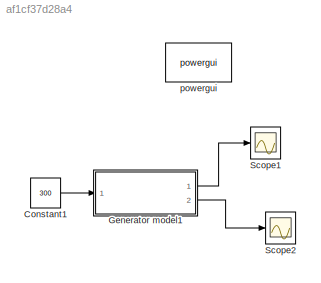
MODEL slx_af1cf37d28a4
KIND model
CONFIG AbsTol = auto
CONFIG FixedStep = Ts
CONFIG MaxStep = auto
CONFIG MinStep = auto
CONFIG RelTol = 1e-3
CONFIG SampleTimeConstraint = Unconstrained
CONFIG Solver = ode3
CONFIG SolverMode = Auto
CONFIG SolverName = ode3
CONFIG StartTime = 0.0
CONFIG StopTime = 2
BLOCK [Constant] Constant1
  Value = 300
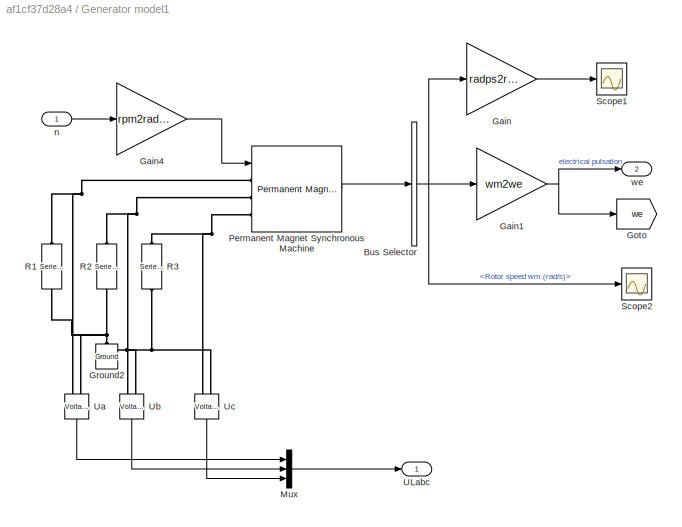
BLOCK [SubSystem] Generator model1
  Ports = [1, 2]
  RequestExecContextInheritance = off
BLOCK [BusSelector] Generator model1/Bus Selector
  OutputSignals = Rotor speed wm (rad/s)
  Ports = [1, 1]
BLOCK [Gain] Generator model1/Gain
  Gain = radps2rpm
  OutDataTypeStr = Inherit: Inherit via internal rule
  ParamDataTypeStr = Inherit: Inherit via internal rule
  SaturateOnIntegerOverflow = off
BLOCK [Gain] Generator model1/Gain1
  Gain = wm2we
  OutDataTypeStr = Inherit: Inherit via internal rule
  ParamDataTypeStr = Inherit: Inherit via internal rule
  SaturateOnIntegerOverflow = off
BLOCK [Gain] Generator model1/Gain4
  Gain = rpm2radps
  OutDataTypeStr = Inherit: Inherit via internal rule
  ParamDataTypeStr = Inherit: Inherit via internal rule
  SaturateOnIntegerOverflow = off
BLOCK [Goto] Generator model1/Goto
  GotoTag = we
  TagVisibility = global
BLOCK [Reference] Generator model1/Ground2  REF=powerlib/Elements/Ground
  LConnTagsString = a
  Ports = [0, 0, 0, 0, 0, 1]
  SourceBlock = powerlib/Elements/Ground
  SourceType = Ground
BLOCK [Mux] Generator model1/Mux
  DisplayOption = bar
  Inputs = 3
  Ports = [3, 1]
BLOCK [Reference] Generator model1/Permanent Magnet Synchronous Machine  REF=powerlib/Machines/Permanent Magnet
Synchronous Machine
  Flat = 120
  Flux = 0.1821
  FluxDistribution = Sinusoidal
  Inductance = 8.5e-3
  InitialConditions = [0,0, 0,0]
  InitialConditions5ph = [0 0 0 0 0 0]
  La = 0.00153
  MachineConstant = Flux linkage established by magnets (V.s)
  MeasurementBus = off
  Mechanical = [0.003334 0.000425 4 0]
  MechanicalLoad = Speed w
  NbPhases = 3
  PolePairs = 4
  Ports = [1, 1, 0, 0, 0, 3]
  PresetModel = 07:  20 Nm 300 Vdc 2200 RPM - 33.9 Nm
  RefAngle = 90 degrees behind phase A axis (modified Park)
  Resistance = 0.129
  RotorType = Round
  ShowDetailedParameters = on
  SourceBlock = powerlib/Machines/Permanent Magnet\nSynchronous Machine
  SourceType = Permanent Magnet Synchronous Machine
  TorqueCst = 1.0926
  TsBlock = -1
  TsPowergui = 0
  VoltageCst = 132.1171
  dqInductances = [8.5e-3,8.5e-3]
BLOCK [Reference] Generator model1/R1  REF=powerlib/Elements/Series RLC Branch
  AttributesFormatString = \n
  BranchType = R
  Capacitance = []
  Inductance = []
  InitialCurrent = 0
  InitialVoltage = 0
  LConnTagsString = __new0
  Measurements = None
  Ports = [0, 0, 0, 0, 0, 1, 1]
  RConnTagsString = __new0
  Resistance = 5.6566e-2
  SetiL0 = off
  Setx0 = off
  SourceBlock = powerlib/Elements/Series RLC Branch
  SourceType = Series RLC Branch
BLOCK [Reference] Generator model1/R2  REF=powerlib/Elements/Series RLC Branch
  AttributesFormatString = \n
  BranchType = R
  Capacitance = []
  Inductance = []
  InitialCurrent = 0
  InitialVoltage = 0
  LConnTagsString = __new0
  Measurements = None
  Ports = [0, 0, 0, 0, 0, 1, 1]
  RConnTagsString = __new0
  Resistance = 5.6566e-2
  SetiL0 = off
  Setx0 = off
  SourceBlock = powerlib/Elements/Series RLC Branch
  SourceType = Series RLC Branch
BLOCK [Reference] Generator model1/R3  REF=powerlib/Elements/Series RLC Branch
  AttributesFormatString = \n
  BranchType = R
  Capacitance = []
  Inductance = []
  InitialCurrent = 0
  InitialVoltage = 0
  LConnTagsString = __new0
  Measurements = None
  Ports = [0, 0, 0, 0, 0, 1, 1]
  RConnTagsString = __new0
  Resistance = 5.6566e-2
  SetiL0 = off
  Setx0 = off
  SourceBlock = powerlib/Elements/Series RLC Branch
  SourceType = Series RLC Branch
BLOCK [Scope] Generator model1/Scope1
  Floating = off
  LimitDataPoints = off
  NumInputPorts = 1
  Ports = [1]
  SaveName = ScopeData1
  YMax = 2196.34
  YMin = 2196.34
  ZoomMode = xonly
BLOCK [Scope] Generator model1/Scope2
  Floating = off
  NumInputPorts = 1
  Ports = [1]
  SaveName = ScopeData2
  ZoomMode = xonly
BLOCK [Outport] Generator model1/ULabc
  IconDisplay = Port number
BLOCK [Reference] Generator model1/Ua  REF=powerlib/Measurements/Voltage Measurement
  AttributesFormatString = \n
  OutputType = Magnitude
  PSBequivalent = 0
  PhasorSimulation = off
  Ports = [0, 1, 0, 0, 0, 2]
  SourceBlock = powerlib/Measurements/Voltage Measurement
  SourceType = Voltage Measurement
  Tag = PoWeRsYsTeMmEaSuReMeNt
BLOCK [Reference] Generator model1/Ub  REF=powerlib/Measurements/Voltage Measurement
  AttributesFormatString = \n
  OutputType = Magnitude
  PSBequivalent = 0
  PhasorSimulation = off
  Ports = [0, 1, 0, 0, 0, 2]
  SourceBlock = powerlib/Measurements/Voltage Measurement
  SourceType = Voltage Measurement
  Tag = PoWeRsYsTeMmEaSuReMeNt
BLOCK [Reference] Generator model1/Uc  REF=powerlib/Measurements/Voltage Measurement
  AttributesFormatString = \n
  OutputType = Magnitude
  PSBequivalent = 0
  PhasorSimulation = off
  Ports = [0, 1, 0, 0, 0, 2]
  SourceBlock = powerlib/Measurements/Voltage Measurement
  SourceType = Voltage Measurement
  Tag = PoWeRsYsTeMmEaSuReMeNt
BLOCK [Inport] Generator model1/n
  IconDisplay = Port number
BLOCK [Outport] Generator model1/we
  IconDisplay = Port number
  Port = 2
BLOCK [Scope] Scope1
  Floating = off
  LimitDataPoints = off
  NumInputPorts = 1
  Ports = [1]
  SaveName = ScopeData3
  YMax = 400
  YMin = -400
BLOCK [Scope] Scope2
  Floating = off
  LimitDataPoints = off
  NumInputPorts = 1
  Ports = [1]
  SaveName = ScopeData4
  YMax = 400
  YMin = -400
BLOCK [Reference] powergui  REF=powerlib/powergui
  DisableRonSwitches = off
  DisableSnubberDevices = off
  DisableVfSwitches = off
  DisplayEquations = off
  DisplayStyle = 1
  EnableUseOfTLC = off
  ErrMax = 1e-4
  Frange = [0:2:500]
  FreqAxis = off
  FunctionMessages = off
  HookPort = off
  Interpol = off
  Iterations = 50
  MaxFrequency = 1000
  Pbase = 100e6
  Ports = []
  Priority = 1
  ResistiveCurrentMeasurement = off
  RestoreLinks = warning
  RmsSteady = 1
  SPID = off
  SampleTime = 50e-6
  ShowGrid = off
  SolverType = Tustin/Backward Euler (TBE)
  SourceBlock = powerlib/powergui
  SourceType = PSB option menu block
  StartTime = 0.0
  SwTol = 0
  Ts = 100
  UnitsV = kV
  UnitsW = MW
  UserDataPersistent = on
  Xlog = on
  Ylog = off
  ZoomFFT = off
  buscounter = 0
  cycles = 1
  display = off
  echomessages = off
  frequency = 60
  frequencyindice = 0
  frequencyindicesteady = 1
  fundamental = 60
  methode = off
  save = off
  structure = 0
  variable = ZData
  x0status = blocks
LINE Constant1:1 -> Generator model1:1
NET Generator model1/Bus Selector:1 -> Generator model1/Gain1:1, Generator model1/Gain:1, Generator model1/Scope2:1
NET Generator model1/Gain1:1 -> Generator model1/Goto:1, Generator model1/we:1
LINE Generator model1/Gain4:1 -> Generator model1/Permanent Magnet Synchronous Machine:1
LINE Generator model1/Gain:1 -> Generator model1/Scope1:1
LINE Generator model1/Mux:1 -> Generator model1/ULabc:1
LINE Generator model1/Permanent Magnet Synchronous Machine:1 -> Generator model1/Bus Selector:1
LINE Generator model1/Ua:1 -> Generator model1/Mux:1
LINE Generator model1/Ub:1 -> Generator model1/Mux:2
LINE Generator model1/Uc:1 -> Generator model1/Mux:3
LINE Generator model1/n:1 -> Generator model1/Gain4:1
LINE Generator model1:1 -> Scope1:1
LINE Generator model1:2 -> Scope2:1
PNET net1: Generator model1/Ground2:LConn1 -- Generator model1/R1:LConn1 -- Generator model1/R2:LConn1 -- Generator model1/R3:LConn1 -- Generator model1/Ua:LConn2 -- Generator model1/Ub:LConn2 -- Generator model1/Uc:LConn2
PNET net2: Generator model1/Permanent Magnet Synchronous Machine:LConn1 -- Generator model1/R1:RConn1 -- Generator model1/Ua:LConn1
PNET net3: Generator model1/Permanent Magnet Synchronous Machine:LConn2 -- Generator model1/R2:RConn1 -- Generator model1/Ub:LConn1
PNET net4: Generator model1/Permanent Magnet Synchronous Machine:LConn3 -- Generator model1/R3:RConn1 -- Generator model1/Uc:LConn1
note: NET lines group one-source signal fan-out (src -> all destinations, sorted); 1:1 wires keep LINE; PNET lines group multi-terminal physical nets as a canonical sorted terminal list (undirected conserving connections); 2-terminal nets keep the pairwise PLINE form
